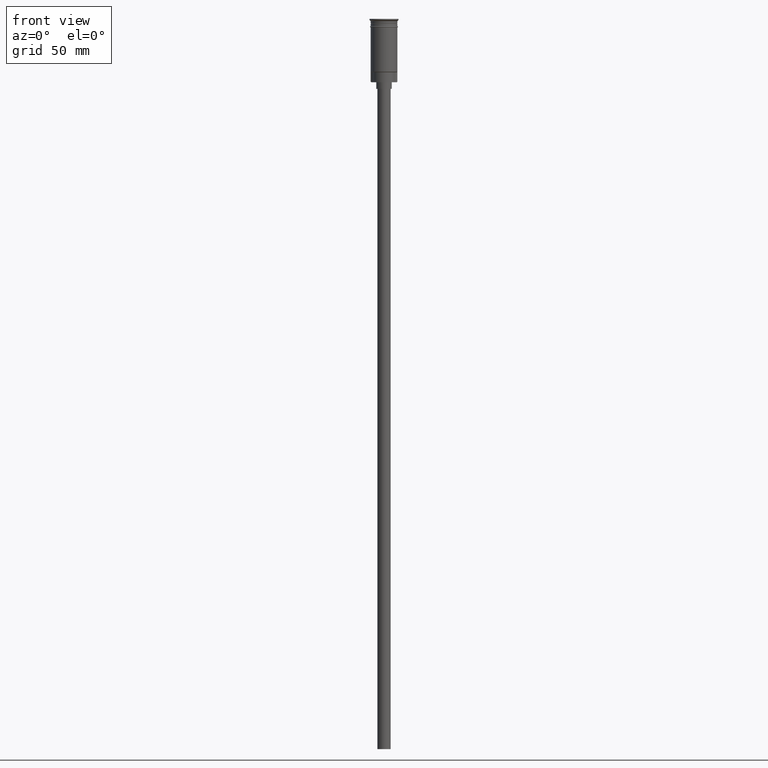
[diagram: clean part render]
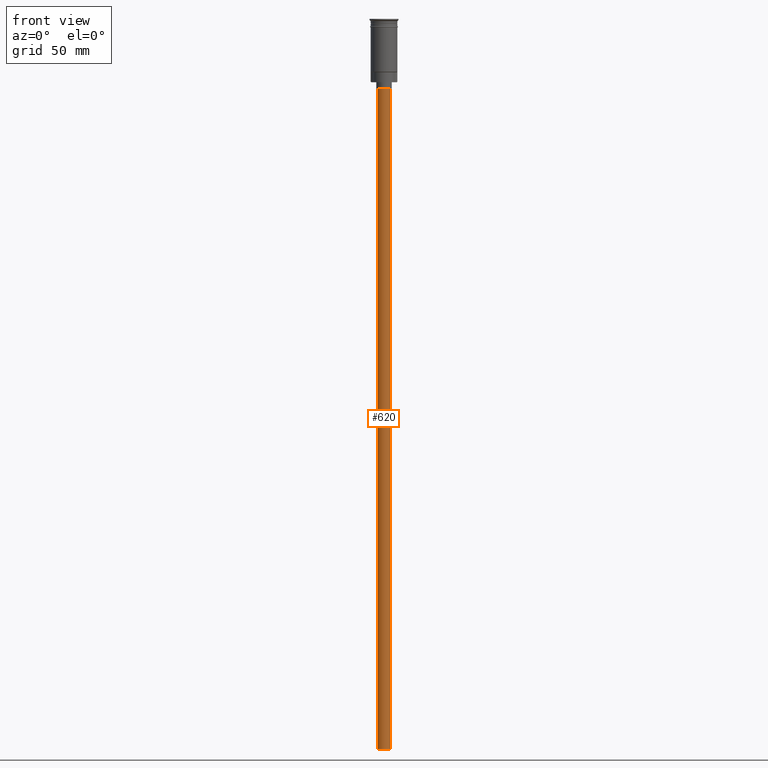
[diagram: same view with one face highlighted and labeled with its STEP entity id]
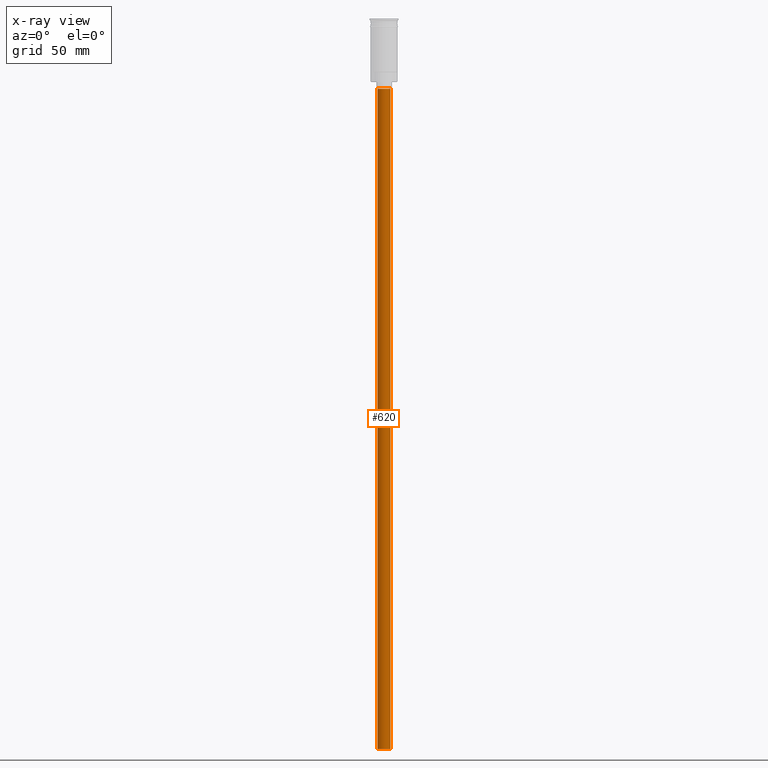
[diagram: x-ray of the same camera — body ghosted, the highlighted face saturated]
A machine part, front view. The second image highlights one B-rep face of the part: STEP entity #620.
The next image is the same camera in x-ray: the body ghosted, the highlighted face saturated — about 0% of this face is hidden behind the body in this view.
In plain terms, the highlighted cylindrical surface (edge-blend (fillet) strip) has radius 3 mm, axis along (-0, -0, 1).
Its self-contained STEP definition (entity closure, byte-faithful):
#14 = CARTESIAN_POINT ( 'NONE',  ( -3.000000000000000444, 3.673940397442060361E-16, -31.50000000000000000 ) ) ;
#64 = EDGE_LOOP ( 'NONE', ( #574, #1052, #360, #1563 ) ) ;
#173 = CARTESIAN_POINT ( 'NONE',  ( 3.000000000000000444, 0.000000000000000000, -328.5000000000000000 ) ) ;
#206 = CIRCLE ( 'NONE', #1219, 3.000000000000000444 ) ;
#208 = VECTOR ( 'NONE', #804, 1000.000000000000000 ) ;
#213 = VERTEX_POINT ( 'NONE', #14 ) ;
#219 = LINE ( 'NONE', #337, #1140 ) ;
#299 = LINE ( 'NONE', #173, #208 ) ;
#320 = AXIS2_PLACEMENT_3D ( 'NONE', #991, #512, #901 ) ;
#337 = CARTESIAN_POINT ( 'NONE',  ( -3.000000000000000444, 3.673940397442060361E-16, -328.5000000000000000 ) ) ;
#360 = ORIENTED_EDGE ( 'NONE', *, *, #876, .T. ) ;
#391 = VERTEX_POINT ( 'NONE', #1358 ) ;
#396 = CARTESIAN_POINT ( 'NONE',  ( 3.000000000000000444, 0.000000000000000000, -328.5000000000000000 ) ) ;
#464 = EDGE_CURVE ( 'NONE', #391, #213, #912, .T. ) ;
#472 = EDGE_CURVE ( 'NONE', #1582, #519, #206, .T. ) ;
#512 = DIRECTION ( 'NONE',  ( 0.000000000000000000, 0.000000000000000000, -1.000000000000000000 ) ) ;
#519 = VERTEX_POINT ( 'NONE', #786 ) ;
#574 = ORIENTED_EDGE ( 'NONE', *, *, #657, .F. ) ;
#585 = AXIS2_PLACEMENT_3D ( 'NONE', #1428, #1329, #701 ) ;
#620 = ADVANCED_FACE ( 'NONE', ( #942 ), #960, .T. ) ;
#657 = EDGE_CURVE ( 'NONE', #519, #213, #219, .T. ) ;
#701 = DIRECTION ( 'NONE',  ( 1.000000000000000000, 0.000000000000000000, 0.000000000000000000 ) ) ;
#786 = CARTESIAN_POINT ( 'NONE',  ( -3.000000000000000444, 3.673940397442060361E-16, -328.5000000000000000 ) ) ;
#804 = DIRECTION ( 'NONE',  ( -0.000000000000000000, -0.000000000000000000, 1.000000000000000000 ) ) ;
#876 = EDGE_CURVE ( 'NONE', #1582, #391, #299, .T. ) ;
#901 = DIRECTION ( 'NONE',  ( -1.000000000000000000, 0.000000000000000000, 0.000000000000000000 ) ) ;
#912 = CIRCLE ( 'NONE', #320, 3.000000000000000444 ) ;
#942 = FACE_OUTER_BOUND ( 'NONE', #64, .T. ) ;
#960 = CYLINDRICAL_SURFACE ( 'NONE', #585, 3.000000000000000444 ) ;
#991 = CARTESIAN_POINT ( 'NONE',  ( 0.000000000000000000, 0.000000000000000000, -31.50000000000000000 ) ) ;
#1052 = ORIENTED_EDGE ( 'NONE', *, *, #472, .F. ) ;
#1140 = VECTOR ( 'NONE', #1551, 1000.000000000000000 ) ;
#1219 = AXIS2_PLACEMENT_3D ( 'NONE', #1394, #1526, #1280 ) ;
#1280 = DIRECTION ( 'NONE',  ( -1.000000000000000000, 0.000000000000000000, 0.000000000000000000 ) ) ;
#1329 = DIRECTION ( 'NONE',  ( -0.000000000000000000, -0.000000000000000000, 1.000000000000000000 ) ) ;
#1358 = CARTESIAN_POINT ( 'NONE',  ( 3.000000000000000444, 0.000000000000000000, -31.50000000000000000 ) ) ;
#1394 = CARTESIAN_POINT ( 'NONE',  ( 0.000000000000000000, 0.000000000000000000, -328.5000000000000000 ) ) ;
#1428 = CARTESIAN_POINT ( 'NONE',  ( 0.000000000000000000, 0.000000000000000000, -328.5000000000000000 ) ) ;
#1526 = DIRECTION ( 'NONE',  ( 0.000000000000000000, 0.000000000000000000, -1.000000000000000000 ) ) ;
#1551 = DIRECTION ( 'NONE',  ( -0.000000000000000000, -0.000000000000000000, 1.000000000000000000 ) ) ;
#1563 = ORIENTED_EDGE ( 'NONE', *, *, #464, .T. ) ;
#1582 = VERTEX_POINT ( 'NONE', #396 ) ;